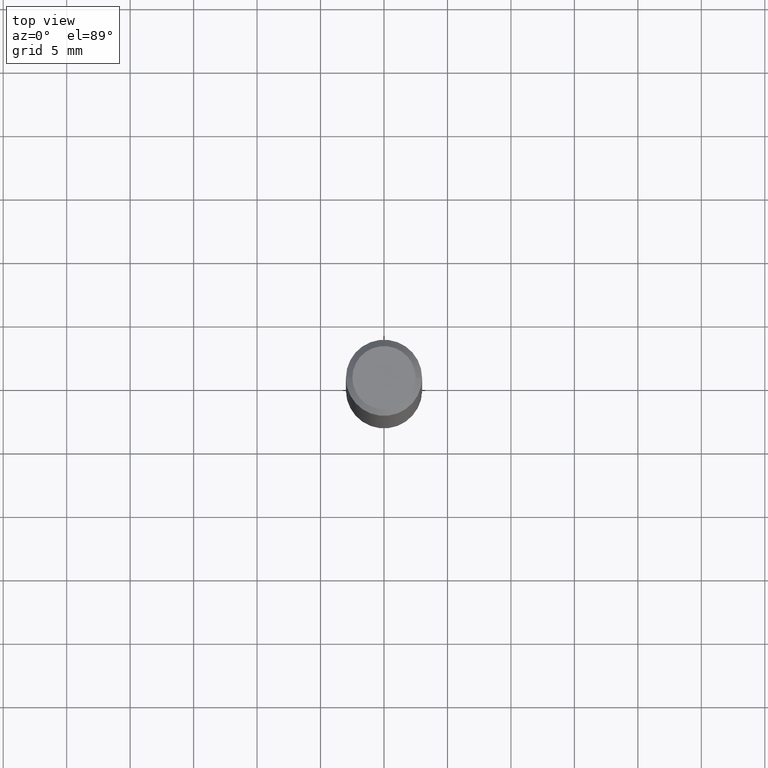
[diagram: clean part render]
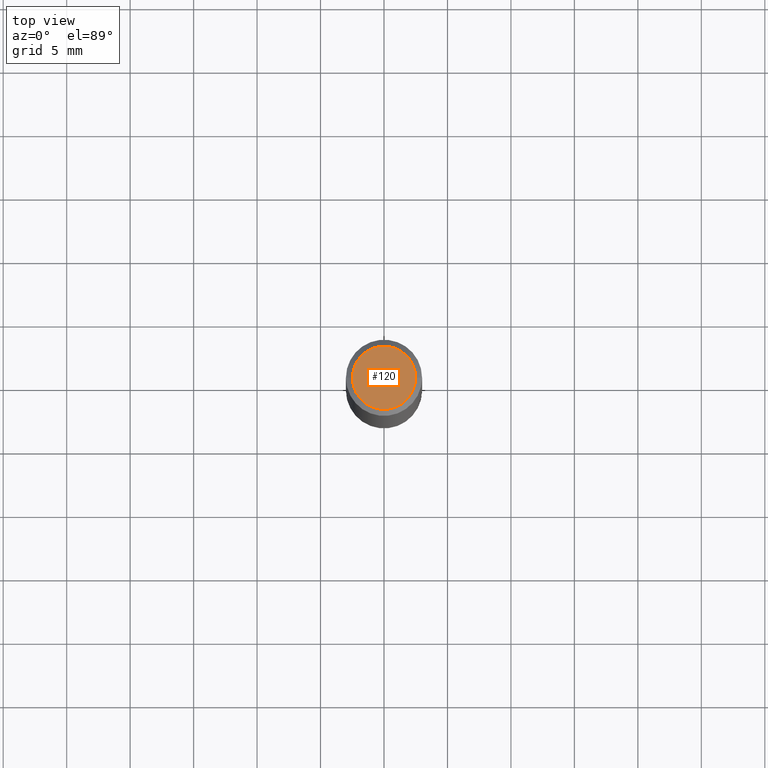
[diagram: same view with one face highlighted and labeled with its STEP entity id]
A machine part, top view. The second image highlights one B-rep face of the part: STEP entity #120.
In plain terms, the highlighted planar face has unit normal (0, -0, -1).
Its self-contained STEP definition (entity closure, byte-faithful):
#16 = DIRECTION ( 'NONE',  ( -2.445468806185136597E-29, 3.491481338843145583E-15, 1.000000000000000000 ) ) ;
#43 = CIRCLE ( 'NONE', #293, 0.09809999999999979847 ) ;
#70 = DIRECTION ( 'NONE',  ( -1.000000000000000000, 6.982962677686265922E-15, -4.876176775795935793E-29 ) ) ;
#83 = EDGE_LOOP ( 'NONE', ( #145, #350 ) ) ;
#90 = AXIS2_PLACEMENT_3D ( 'NONE', #186, #16, #98 ) ;
#98 = DIRECTION ( 'NONE',  ( 1.000000000000000000, -6.982962677686267499E-15, 4.876195163481342132E-29 ) ) ;
#115 = VERTEX_POINT ( 'NONE', #329 ) ;
#120 = ADVANCED_FACE ( 'NONE', ( #304 ), #185, .F. ) ;
#124 = DIRECTION ( 'NONE',  ( 2.438088387897960049E-29, -3.491481338843145188E-15, -1.000000000000000000 ) ) ;
#145 = ORIENTED_EDGE ( 'NONE', *, *, #156, .T. ) ;
#156 = EDGE_CURVE ( 'NONE', #115, #233, #318, .T. ) ;
#163 = CARTESIAN_POINT ( 'NONE',  ( 6.850286386810212718E-16, 0.09809999999999979847, -3.403800630954616551E-16 ) ) ;
#185 = PLANE ( 'NONE',  #195 ) ;
#186 = CARTESIAN_POINT ( 'NONE',  ( -1.043851414335219820E-46, 1.490343170380447200E-32, 4.268512490100411279E-18 ) ) ;
#193 = CARTESIAN_POINT ( 'NONE',  ( -1.043851414335219820E-46, 1.490343170380447200E-32, 4.268512490100411279E-18 ) ) ;
#195 = AXIS2_PLACEMENT_3D ( 'NONE', #163, #124, #70 ) ;
#222 = CARTESIAN_POINT ( 'NONE',  ( 0.09809999999999979847, -7.765346469475323778E-16, 4.268512490105521927E-18 ) ) ;
#233 = VERTEX_POINT ( 'NONE', #222 ) ;
#251 = DIRECTION ( 'NONE',  ( -2.445468806185136597E-29, 3.491481338843145583E-15, 1.000000000000000000 ) ) ;
#293 = AXIS2_PLACEMENT_3D ( 'NONE', #193, #251, #338 ) ;
#304 = FACE_OUTER_BOUND ( 'NONE', #83, .T. ) ;
#318 = CIRCLE ( 'NONE', #90, 0.09809999999999979847 ) ;
#328 = EDGE_CURVE ( 'NONE', #233, #115, #43, .T. ) ;
#329 = CARTESIAN_POINT ( 'NONE',  ( -0.09809999999999979847, 7.199434520694525264E-16, 4.268512490095498617E-18 ) ) ;
#338 = DIRECTION ( 'NONE',  ( 1.000000000000000000, -6.982962677686267499E-15, 4.876195163481342132E-29 ) ) ;
#350 = ORIENTED_EDGE ( 'NONE', *, *, #328, .T. ) ;